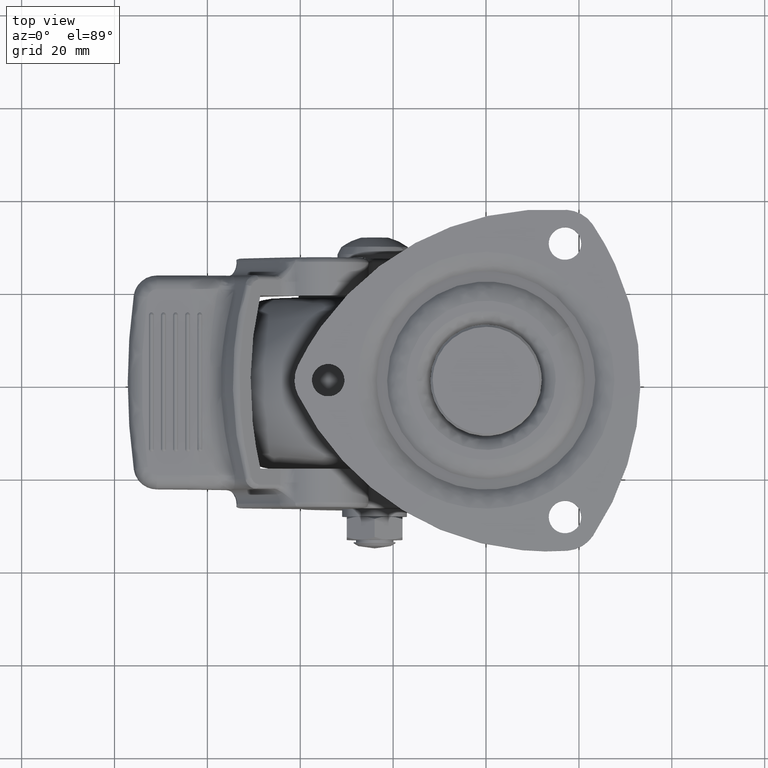
[diagram: clean part render]
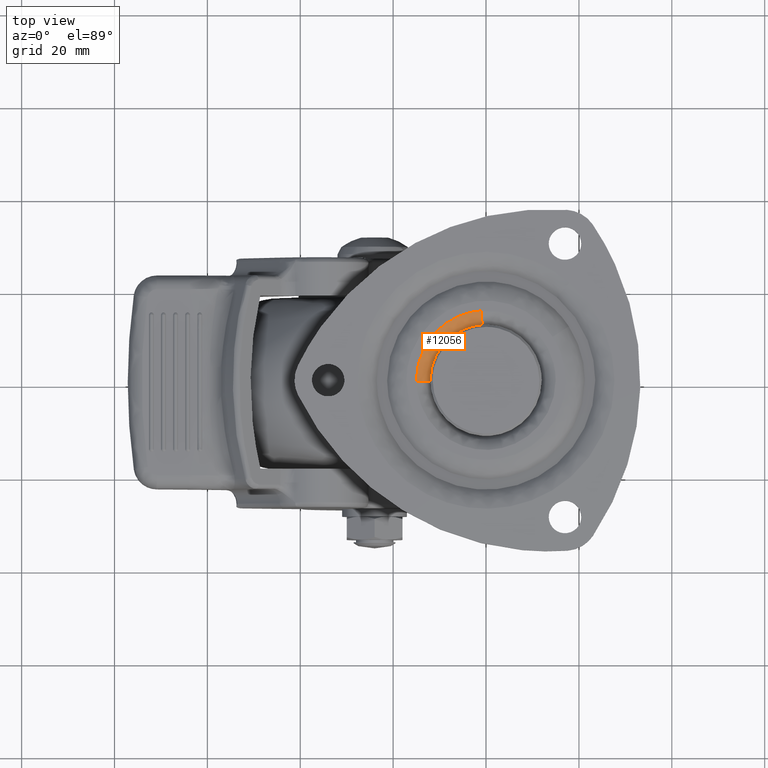
[diagram: same view with one face highlighted and labeled with its STEP entity id]
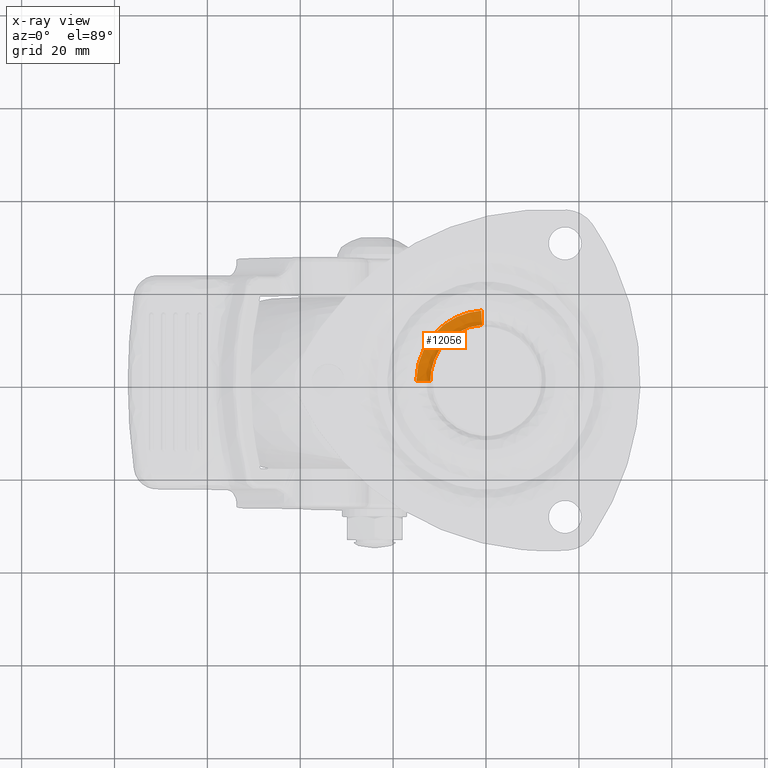
[diagram: x-ray of the same camera — body ghosted, the highlighted face saturated]
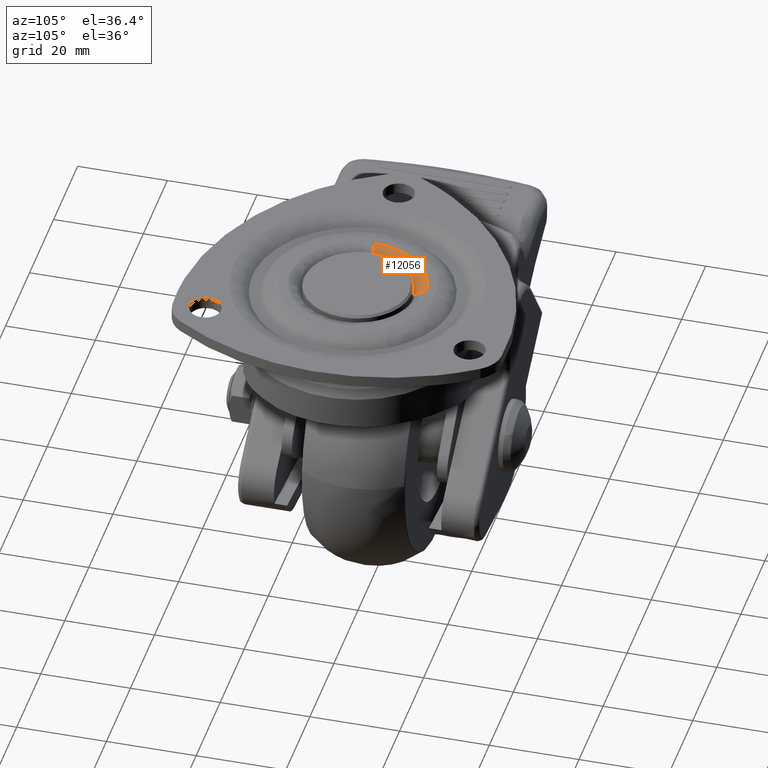
[diagram: same view with one face highlighted and labeled with its STEP entity id]
A machine part, top view. The second image highlights one B-rep face of the part: STEP entity #12056.
The next image is the same camera in x-ray: the body ghosted, the highlighted face saturated — about 0% of this face is hidden behind the body in this view.
A second angle (auxiliary view) of the same face is appended — the face is thin or edge-on in the first view.
In plain terms, the highlighted face is a freeform B-spline surface patch.
Its self-contained STEP definition (entity closure, byte-faithful):
#10954=CARTESIAN_POINT('',(-0.836799019029461,11.970788086076510,-3.000014398249409));
#10955=VERTEX_POINT('',#10954);
#10971=CARTESIAN_POINT('',(-12.0,0.0,-3.000014399278330));
#10972=VERTEX_POINT('',#10971);
#10973=CARTESIAN_POINT('',(-0.836799019029461,11.970788086076510,-3.000014398249409));
#10974=CARTESIAN_POINT('',(-12.0,11.190442166966745,-3.000014399278330));
#10975=CARTESIAN_POINT('',(-12.0,0.0,-3.000014399278330));
#10983=(BOUNDED_CURVE()B_SPLINE_CURVE(2,(#10973,#10974,#10975),.UNSPECIFIED.,.F.,.U.)B_SPLINE_CURVE_WITH_KNOTS((3,3),(0.762166313468433,1.0),.UNSPECIFIED.)CURVE()GEOMETRIC_REPRESENTATION_ITEM()RATIONAL_B_SPLINE_CURVE((0.972879876379521,0.721360504037999,1.0))REPRESENTATION_ITEM(''));
#10984=EDGE_CURVE('',#10955,#10972,#10983,.T.);
#10986=CARTESIAN_POINT('',(-11.999052530445610,-0.150792478614326,-3.000014398239009));
#10987=VERTEX_POINT('',#10986);
#10988=CARTESIAN_POINT('',(-12.0,0.0,-3.000014399278330));
#10989=CARTESIAN_POINT('',(-12.0,-0.075399215916773,-3.000014399278330));
#10990=CARTESIAN_POINT('',(-11.999052530445610,-0.150792478614326,-3.000014398239009));
#10998=(BOUNDED_CURVE()B_SPLINE_CURVE(2,(#10988,#10989,#10990),.UNSPECIFIED.,.F.,.U.)B_SPLINE_CURVE_WITH_KNOTS((3,3),(0.0,0.002215704078685),.UNSPECIFIED.)CURVE()GEOMETRIC_REPRESENTATION_ITEM()RATIONAL_B_SPLINE_CURVE((1.0,0.997404141201823,0.994854295643061))REPRESENTATION_ITEM(''));
#10999=EDGE_CURVE('',#10972,#10987,#10998,.T.);
#11940=CARTESIAN_POINT('',(-14.998815662880681,-0.188490598383475,-0.000014399278322));
#11941=VERTEX_POINT('',#11940);
#11942=CARTESIAN_POINT('',(-11.999052530445619,-0.150792478614326,-3.000014398239009));
#11943=CARTESIAN_POINT('',(-11.999052532524265,-0.150792478626352,-0.000014399628077));
#11944=CARTESIAN_POINT('',(-14.998815662880677,-0.188490598383475,-0.000014399278322));
#11952=(BOUNDED_CURVE()B_SPLINE_CURVE(2,(#11942,#11943,#11944),.UNSPECIFIED.,.F.,.U.)B_SPLINE_CURVE_WITH_KNOTS((3,3),(-1.725134642571269,-0.274865356837740),.UNSPECIFIED.)CURVE()GEOMETRIC_REPRESENTATION_ITEM()RATIONAL_B_SPLINE_CURVE((0.883342149399540,0.624617224275668,0.883342149610403))REPRESENTATION_ITEM(''));
#11953=EDGE_CURVE('',#10987,#11941,#11952,.T.);
#11972=CARTESIAN_POINT('',(-1.045998774012697,14.963485105692991,-0.000014399278322));
#11973=VERTEX_POINT('',#11972);
#11989=CARTESIAN_POINT('',(-0.836799019029461,11.970788086076512,-3.000014398249409));
#11990=CARTESIAN_POINT('',(-0.836799019048806,11.970788088138018,-0.000014403042856));
#11991=CARTESIAN_POINT('',(-1.045998774012697,14.963485105692994,-0.000014399278322));
#11999=(BOUNDED_CURVE()B_SPLINE_CURVE(2,(#11989,#11990,#11991),.UNSPECIFIED.,.F.,.U.)B_SPLINE_CURVE_WITH_KNOTS((3,3),(-1.725134642578379,-0.274865358005020),.UNSPECIFIED.)CURVE()GEOMETRIC_REPRESENTATION_ITEM()RATIONAL_B_SPLINE_CURVE((0.863472075127365,0.610566960208333,0.863472074923894))REPRESENTATION_ITEM(''));
#12000=EDGE_CURVE('',#10955,#11973,#11999,.T.);
#12005=CARTESIAN_POINT('',(-12.006313862068161,-0.150883731987989,-3.208625747692183));
#12006=CARTESIAN_POINT('',(-12.148801433396082,11.187320064184449,-3.208625747692183));
#12007=CARTESIAN_POINT('',(-0.837305415153020,11.978032313231761,-3.208625747692183));
#12008=CARTESIAN_POINT('',(-11.766459405241029,-0.147869473324106,0.232597638816602));
#12009=CARTESIAN_POINT('',(-11.906100451030968,10.963826941468104,0.232597638816603));
#12010=CARTESIAN_POINT('',(-0.820578263268008,11.738742847093055,0.232597638816602));
#12011=CARTESIAN_POINT('',(-15.207411046640978,-0.191112023136575,-0.007276339561257));
#12012=CARTESIAN_POINT('',(-15.387888343096408,14.170058910743901,-0.007276339561257));
#12013=CARTESIAN_POINT('',(-1.060545956576966,15.171589133010222,-0.007276339561257));
#12021=(BOUNDED_SURFACE()B_SPLINE_SURFACE(2,2,((#12005,#12008,#12011),(#12006,#12009,#12012),(#12007,#12010,#12013)),.UNSPECIFIED.,.F.,.F.,.U.)B_SPLINE_SURFACE_WITH_KNOTS((3,3),(3,3),(0.0,24.183876177651481),(0.0,5.467122398720993),.UNSPECIFIED.)GEOMETRIC_REPRESENTATION_ITEM()RATIONAL_B_SPLINE_SURFACE(((0.910479798011975,0.597479540681832,0.910479868185649),(0.654473373655800,0.429481743070166,0.654473424098216),(0.889999284063481,0.584039716872898,0.889999352658654)))REPRESENTATION_ITEM('')SURFACE());
#12022=ORIENTED_EDGE('',*,*,#10984,.F.);
#12023=ORIENTED_EDGE('',*,*,#12000,.T.);
#12024=CARTESIAN_POINT('',(-15.0,0.0,-0.000014399278314));
#12025=VERTEX_POINT('',#12024);
#12026=CARTESIAN_POINT('',(-15.0,0.0,-0.000014399278314));
#12027=CARTESIAN_POINT('',(-15.000000000000007,13.988052708039099,-0.000014399278314));
#12028=CARTESIAN_POINT('',(-1.045998774012697,14.963485105692994,-0.000014399278322));
#12036=(BOUNDED_CURVE()B_SPLINE_CURVE(2,(#12026,#12027,#12028),.UNSPECIFIED.,.F.,.U.)B_SPLINE_CURVE_WITH_KNOTS((3,3),(0.0,0.237833686523358),.UNSPECIFIED.)CURVE()GEOMETRIC_REPRESENTATION_ITEM()RATIONAL_B_SPLINE_CURVE((1.0,0.721360504047616,0.972879876362158))REPRESENTATION_ITEM(''));
#12037=EDGE_CURVE('',#12025,#11973,#12036,.T.);
#12038=ORIENTED_EDGE('',*,*,#12037,.F.);
#12039=CARTESIAN_POINT('',(-14.998815662880682,-0.188490598383475,-0.000014399278322));
#12040=CARTESIAN_POINT('',(-15.000000000000002,-0.094249020013746,-0.000014399278314));
#12041=CARTESIAN_POINT('',(-15.0,0.0,-0.000014399278314));
#12049=(BOUNDED_CURVE()B_SPLINE_CURVE(2,(#12039,#12040,#12041),.UNSPECIFIED.,.F.,.U.)B_SPLINE_CURVE_WITH_KNOTS((3,3),(0.997784295918553,1.0),.UNSPECIFIED.)CURVE()GEOMETRIC_REPRESENTATION_ITEM()RATIONAL_B_SPLINE_CURVE((0.994854295636705,0.997404141198588,1.0))REPRESENTATION_ITEM(''));
#12050=EDGE_CURVE('',#11941,#12025,#12049,.T.);
#12051=ORIENTED_EDGE('',*,*,#12050,.F.);
#12052=ORIENTED_EDGE('',*,*,#11953,.F.);
#12053=ORIENTED_EDGE('',*,*,#10999,.F.);
#12054=EDGE_LOOP('',(#12022,#12023,#12038,#12051,#12052,#12053));
#12055=FACE_OUTER_BOUND('',#12054,.T.);
#12056=ADVANCED_FACE('',(#12055),#12021,.T.);